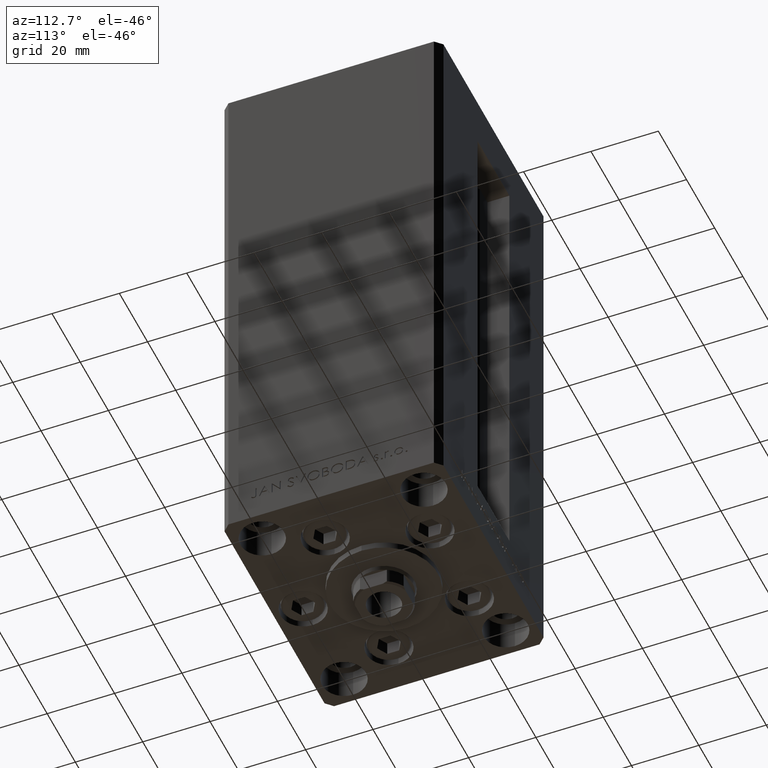
[diagram: clean part render]
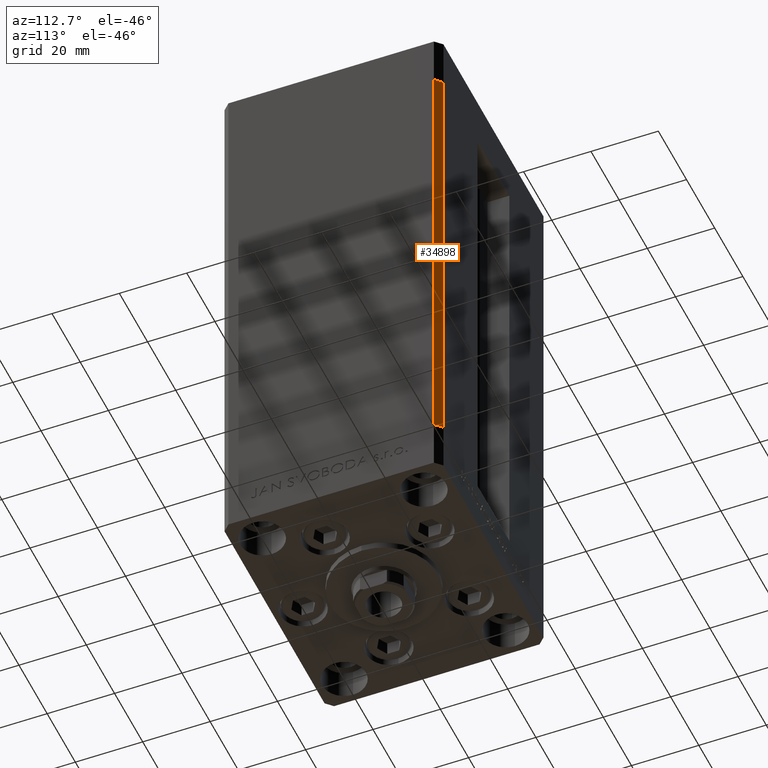
[diagram: same view with one face highlighted and labeled with its STEP entity id]
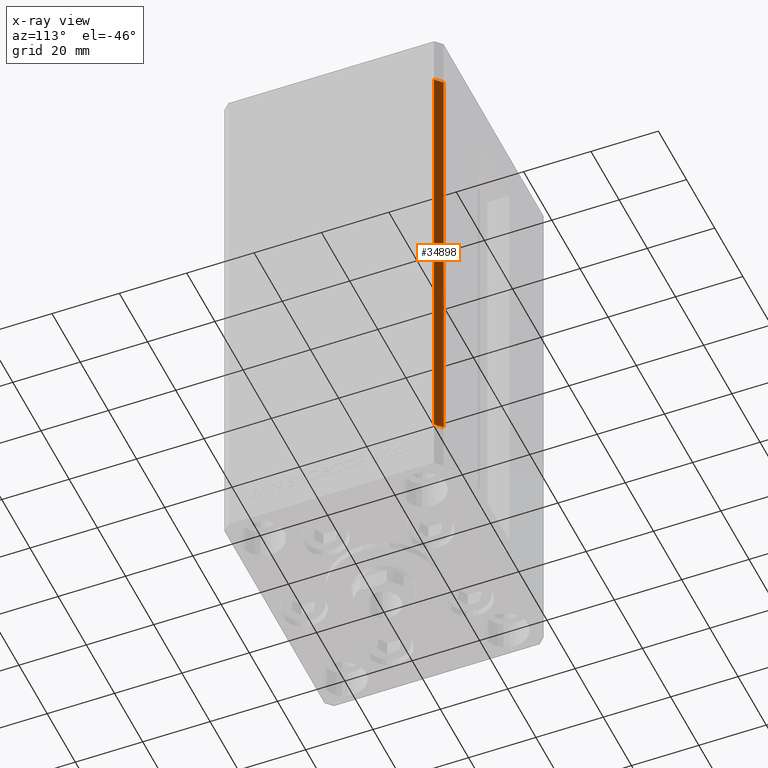
[diagram: x-ray of the same camera — body ghosted, the highlighted face saturated]
A machine part, auxiliary view. The second image highlights one B-rep face of the part: STEP entity #34898.
The next image is the same camera in x-ray: the body ghosted, the highlighted face saturated — about 0% of this face is hidden behind the body in this view.
In plain terms, the highlighted planar face has unit normal (0.7071, 0.7071, 0).
Its self-contained STEP definition (entity closure, byte-faithful):
#729 = EDGE_CURVE ( 'NONE', #16207, #4987, #22989, .T. ) ;
#762 = VECTOR ( 'NONE', #6760, 1000.000000000000114 ) ;
#2316 = CARTESIAN_POINT ( 'NONE',  ( 35.50000000000000000, 32.49999999999999289, 136.0000000000000000 ) ) ;
#3578 = VERTEX_POINT ( 'NONE', #31984 ) ;
#4278 = CARTESIAN_POINT ( 'NONE',  ( 37.50000000000000711, 30.50000000000000000, 136.0000000000000000 ) ) ;
#4347 = ORIENTED_EDGE ( 'NONE', *, *, #729, .T. ) ;
#4968 = PLANE ( 'NONE',  #44514 ) ;
#4987 = VERTEX_POINT ( 'NONE', #10963 ) ;
#6760 = DIRECTION ( 'NONE',  ( 0.7071067811865500152, -0.7071067811865451302, 0.000000000000000000 ) ) ;
#7637 = LINE ( 'NONE', #29552, #15718 ) ;
#9749 = EDGE_CURVE ( 'NONE', #3578, #4987, #13464, .T. ) ;
#9985 = VECTOR ( 'NONE', #30858, 1000.000000000000000 ) ;
#10442 = LINE ( 'NONE', #25238, #762 ) ;
#10818 = EDGE_CURVE ( 'NONE', #46213, #16207, #10442, .T. ) ;
#10963 = CARTESIAN_POINT ( 'NONE',  ( 37.50000000000000711, 30.50000000000000000, 0.000000000000000000 ) ) ;
#11180 = EDGE_LOOP ( 'NONE', ( #36621, #15682, #40944, #4347 ) ) ;
#13464 = LINE ( 'NONE', #28497, #22762 ) ;
#15682 = ORIENTED_EDGE ( 'NONE', *, *, #43969, .F. ) ;
#15718 = VECTOR ( 'NONE', #44570, 1000.000000000000000 ) ;
#16207 = VERTEX_POINT ( 'NONE', #4278 ) ;
#22762 = VECTOR ( 'NONE', #43508, 1000.000000000000114 ) ;
#22989 = LINE ( 'NONE', #38236, #9985 ) ;
#23190 = FACE_OUTER_BOUND ( 'NONE', #11180, .T. ) ;
#25238 = CARTESIAN_POINT ( 'NONE',  ( 35.50000000000000000, 32.49999999999999289, 136.0000000000000000 ) ) ;
#27855 = CARTESIAN_POINT ( 'NONE',  ( 35.50000000000000000, 32.49999999999999289, 136.0000000000000000 ) ) ;
#28497 = CARTESIAN_POINT ( 'NONE',  ( 35.50000000000000000, 32.49999999999999289, 0.000000000000000000 ) ) ;
#29552 = CARTESIAN_POINT ( 'NONE',  ( 35.50000000000000000, 32.49999999999999289, 136.0000000000000000 ) ) ;
#30858 = DIRECTION ( 'NONE',  ( -0.000000000000000000, -0.000000000000000000, -1.000000000000000000 ) ) ;
#31784 = DIRECTION ( 'NONE',  ( 0.7071067811865451302, 0.7071067811865500152, -0.000000000000000000 ) ) ;
#31984 = CARTESIAN_POINT ( 'NONE',  ( 35.50000000000000000, 32.49999999999999289, 0.000000000000000000 ) ) ;
#34898 = ADVANCED_FACE ( 'NONE', ( #23190 ), #4968, .T. ) ;
#36621 = ORIENTED_EDGE ( 'NONE', *, *, #9749, .F. ) ;
#38236 = CARTESIAN_POINT ( 'NONE',  ( 37.50000000000000711, 30.50000000000000000, 136.0000000000000000 ) ) ;
#40944 = ORIENTED_EDGE ( 'NONE', *, *, #10818, .T. ) ;
#42856 = DIRECTION ( 'NONE',  ( -0.7071067811865500152, 0.7071067811865451302, 0.000000000000000000 ) ) ;
#43508 = DIRECTION ( 'NONE',  ( 0.7071067811865500152, -0.7071067811865451302, 0.000000000000000000 ) ) ;
#43969 = EDGE_CURVE ( 'NONE', #46213, #3578, #7637, .T. ) ;
#44514 = AXIS2_PLACEMENT_3D ( 'NONE', #27855, #31784, #42856 ) ;
#44570 = DIRECTION ( 'NONE',  ( -0.000000000000000000, -0.000000000000000000, -1.000000000000000000 ) ) ;
#46213 = VERTEX_POINT ( 'NONE', #2316 ) ;